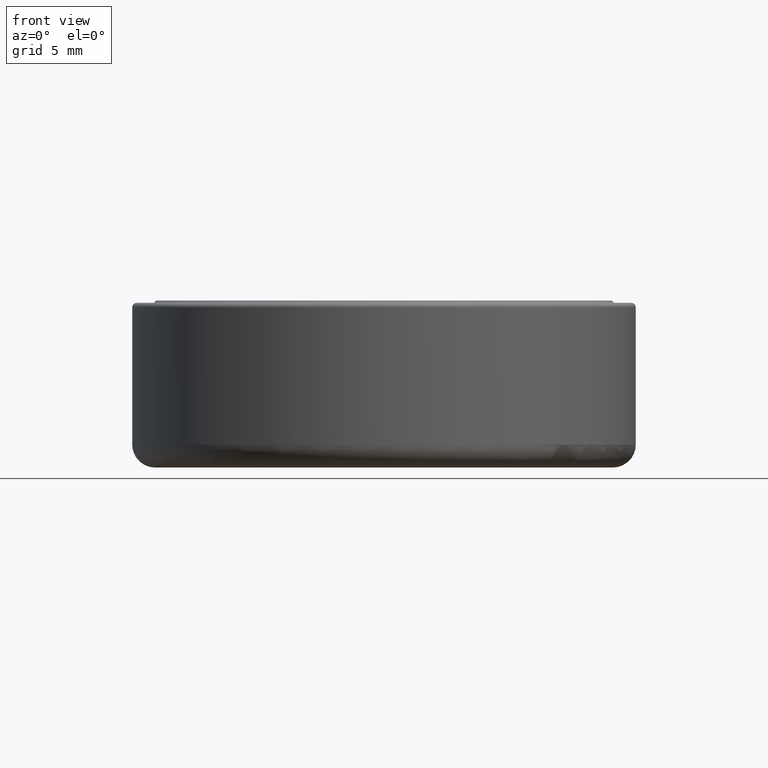
[diagram: clean part render]
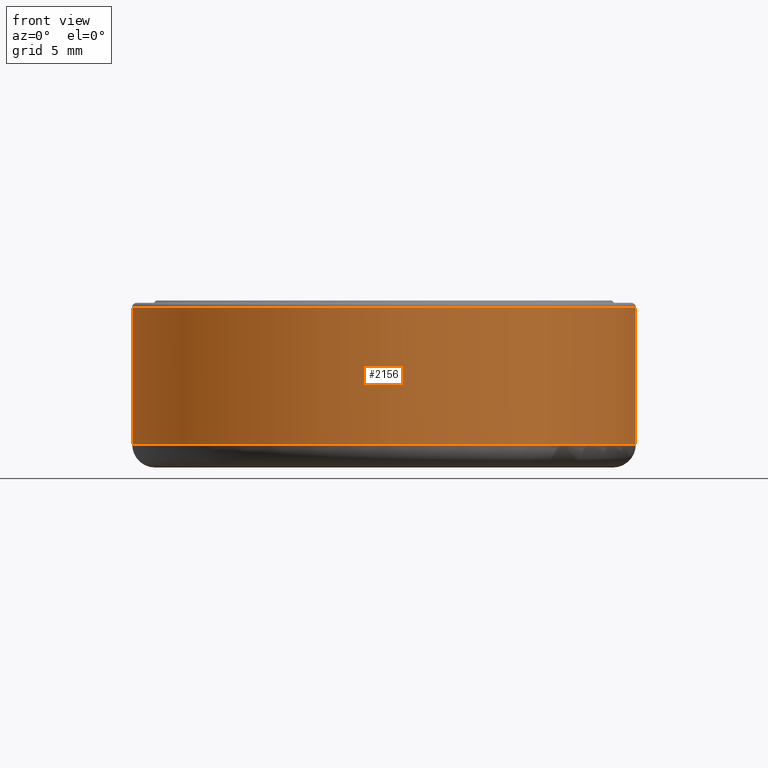
[diagram: same view with one face highlighted and labeled with its STEP entity id]
A machine part, front view. The second image highlights one B-rep face of the part: STEP entity #2156.
In plain terms, the highlighted cylindrical surface (bore or boss wall) has radius 11 mm, axis along (-0, -0, 1).
Its self-contained STEP definition (entity closure, byte-faithful):
#187 = CYLINDRICAL_SURFACE ( 'NONE', #8489, 11.00000000000000000 ) ;
#190 = CARTESIAN_POINT ( 'NONE',  ( 11.00000000000000000, 0.0000000000000000000, -2.650000000000000400 ) ) ;
#210 = ORIENTED_EDGE ( 'NONE', *, *, #7873, .T. ) ;
#296 = FACE_OUTER_BOUND ( 'NONE', #8209, .T. ) ;
#538 = VERTEX_POINT ( 'NONE', #190 ) ;
#643 = CIRCLE ( 'NONE', #2595, 11.00000000000000000 ) ;
#1499 = DIRECTION ( 'NONE',  ( -0.0000000000000000000, -0.0000000000000000000, 1.000000000000000000 ) ) ;
#1704 = VERTEX_POINT ( 'NONE', #4881 ) ;
#2156 = ADVANCED_FACE ( 'NONE', ( #5667, #296 ), #187, .T. ) ;
#2325 = DIRECTION ( 'NONE',  ( 1.000000000000000000, 0.0000000000000000000, 0.0000000000000000000 ) ) ;
#2595 = AXIS2_PLACEMENT_3D ( 'NONE', #3651, #9709, #9748 ) ;
#3651 = CARTESIAN_POINT ( 'NONE',  ( 0.0000000000000000000, 0.0000000000000000000, 3.350000000000000100 ) ) ;
#3762 = AXIS2_PLACEMENT_3D ( 'NONE', #6848, #1499, #2325 ) ;
#4100 = EDGE_CURVE ( 'NONE', #1704, #1704, #643, .T. ) ;
#4881 = CARTESIAN_POINT ( 'NONE',  ( -11.00000000000000000, 0.0000000000000000000, 3.350000000000000100 ) ) ;
#5667 = FACE_OUTER_BOUND ( 'NONE', #7923, .T. ) ;
#5795 = ORIENTED_EDGE ( 'NONE', *, *, #4100, .T. ) ;
#6848 = CARTESIAN_POINT ( 'NONE',  ( 0.0000000000000000000, 0.0000000000000000000, -2.650000000000000400 ) ) ;
#7838 = DIRECTION ( 'NONE',  ( -0.0000000000000000000, -0.0000000000000000000, 1.000000000000000000 ) ) ;
#7873 = EDGE_CURVE ( 'NONE', #538, #538, #9312, .T. ) ;
#7923 = EDGE_LOOP ( 'NONE', ( #5795 ) ) ;
#8209 = EDGE_LOOP ( 'NONE', ( #210 ) ) ;
#8489 = AXIS2_PLACEMENT_3D ( 'NONE', #8527, #7838, #8557 ) ;
#8527 = CARTESIAN_POINT ( 'NONE',  ( 0.0000000000000000000, 0.0000000000000000000, 0.0000000000000000000 ) ) ;
#8557 = DIRECTION ( 'NONE',  ( 1.000000000000000000, 0.0000000000000000000, 0.0000000000000000000 ) ) ;
#9312 = CIRCLE ( 'NONE', #3762, 11.00000000000000000 ) ;
#9709 = DIRECTION ( 'NONE',  ( 0.0000000000000000000, 0.0000000000000000000, -1.000000000000000000 ) ) ;
#9748 = DIRECTION ( 'NONE',  ( -1.000000000000000000, 0.0000000000000000000, 0.0000000000000000000 ) ) ;